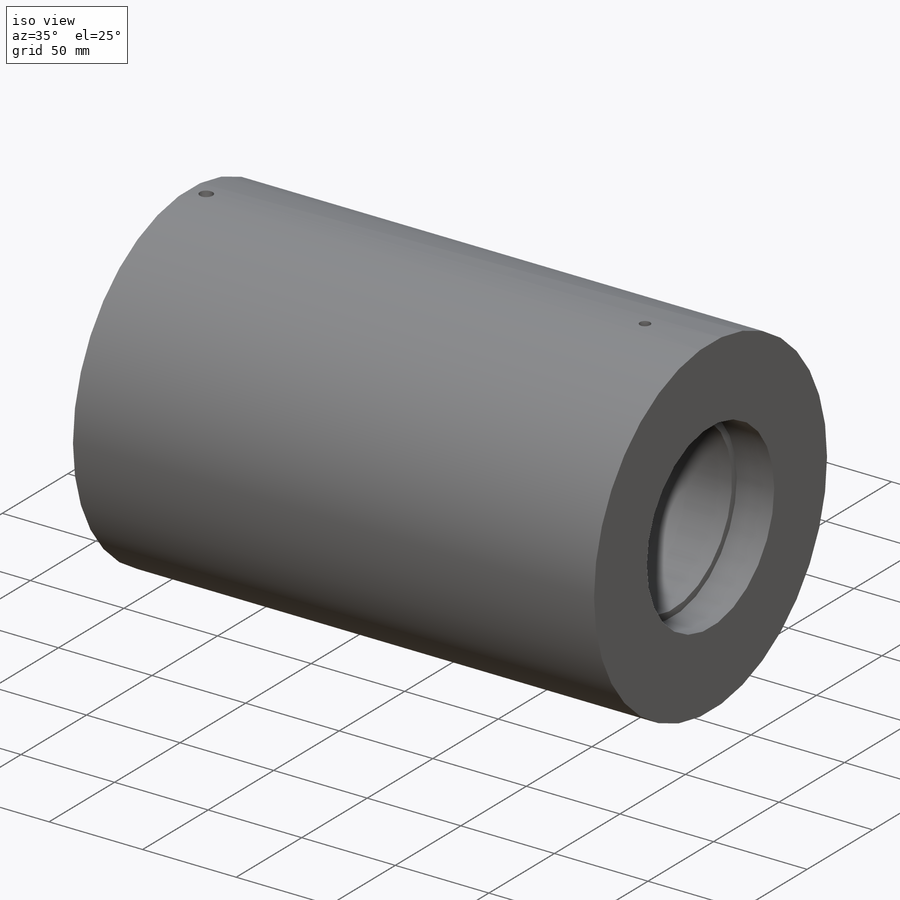
[diagram: iso view]
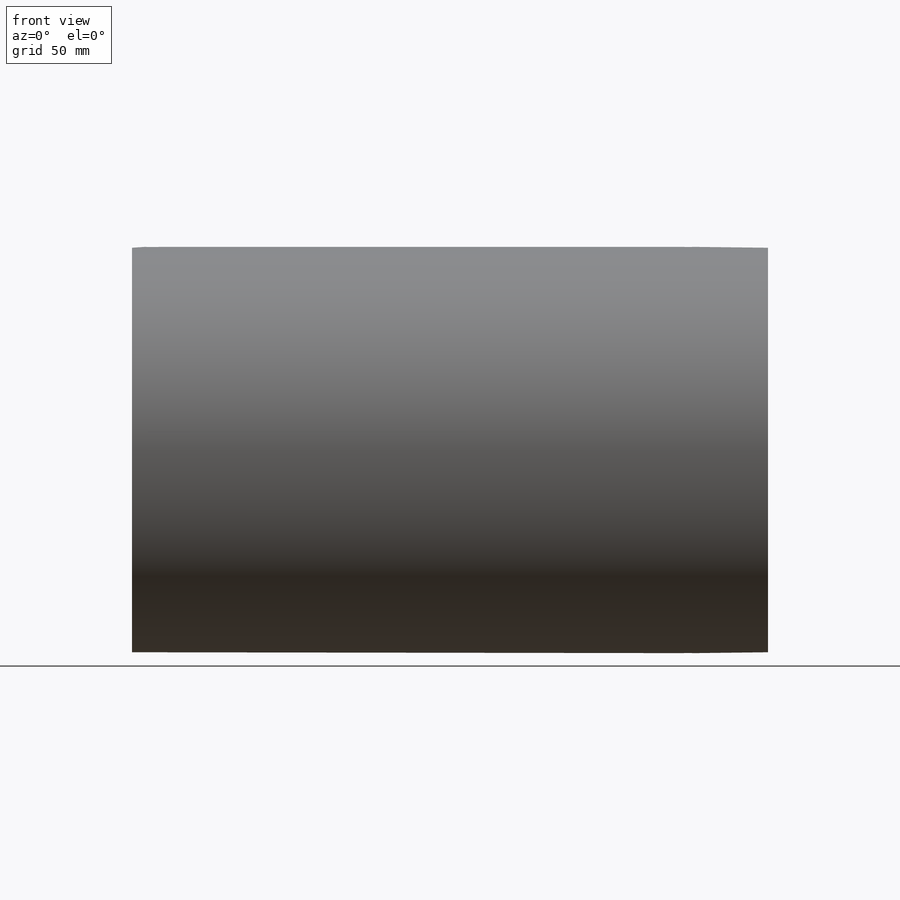
[diagram: front view]
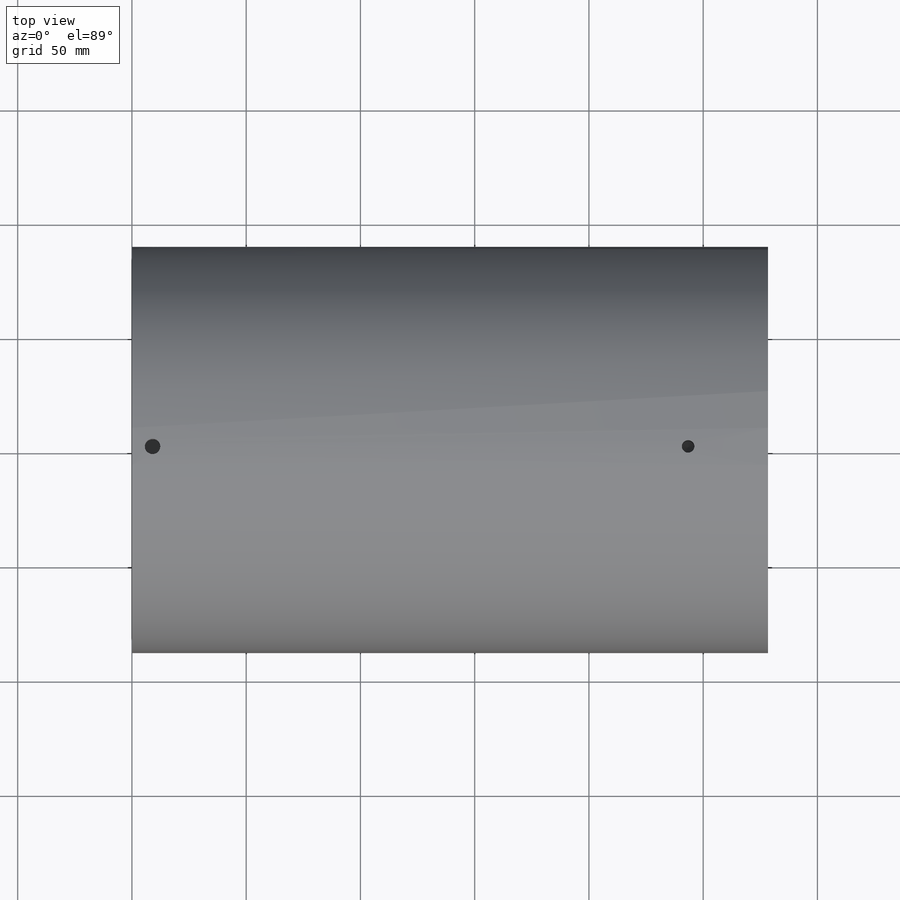
[diagram: top view]
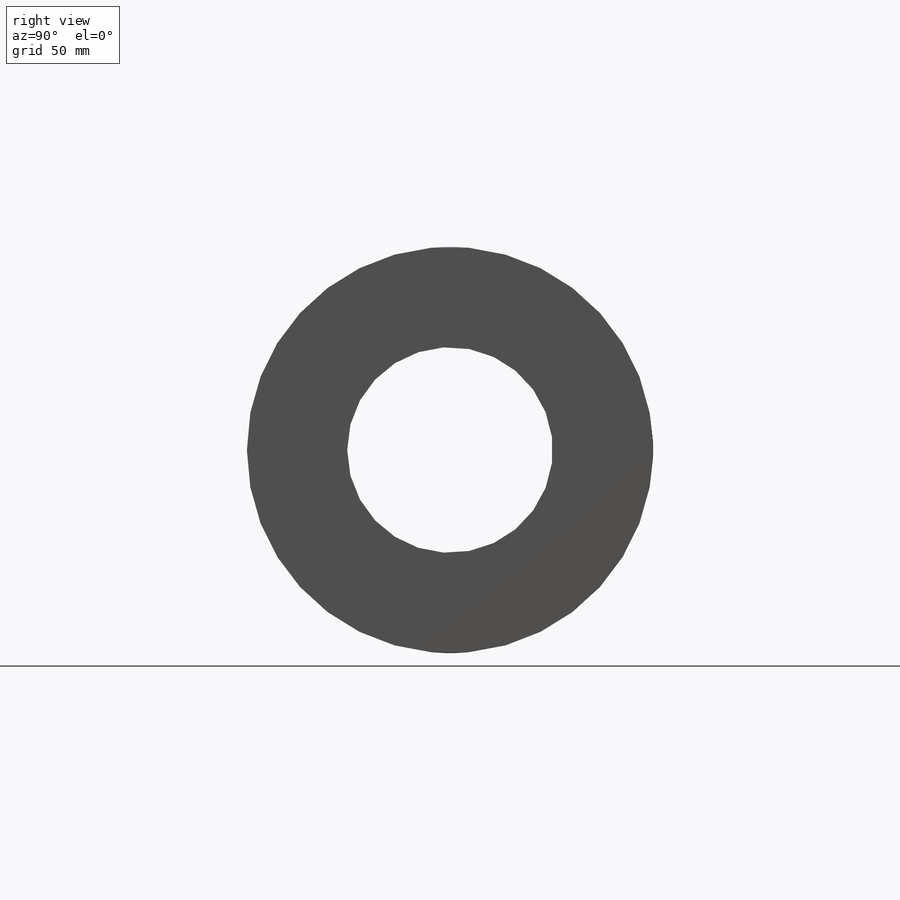
[diagram: right view]
SOLIDWORKS PART (.sldprt)
format: sldprt  version: not decoded by parser v0  size: 314,880 bytes
history: native  units: mm
features: sketch x6, plane x3, material x1, revolve x1, cut_revolve x1, thread x1, pattern_circular x1, hole x1 (+10 scaffold rows collapsed)
feature tree (25):
  scaffold x10  (default folders/planes/origin — collapsed)
  material  "1.0460/A105"
  plane  "Ebene vorne"
  plane  "Ebene oben"
  plane  "Ebene rechts"
  sketch  "Skizze1"  dims[c1.Radius=1.5mm c1.D9=1.0mm c1.D6=1.0mm c1.D1=1.0mm c1.D2=~13.291154mm c2.D2=45.0deg c2.D3=18.0mm c2.D4=~3.691987mm c3.D4=30.0deg c3.D5=~11.814359mm c4.D5=60.0deg c4.D6=~2.676691mm c5.D6=45.0deg c5.D7=1.0mm c5.D8=20.0mm c5.Absatz=1.6mm c5.D10=135.0mm c5.D11=2.0mm c5.Deckeldurchmesser=157.3mm c5.Außendurchmesser=177.8mm c5.Dichtleiste=157.2mm c5.Innendurchmesser=97.2mm c5.D16=70.6mm c5.D17=90.0mm c5.D18=226.0mm c5.D19=230.0mm c5.Gehäuselänge=278.4mm c5.D12=176.0mm]
  revolve  "Rotation1"  Angle=360deg
  sketch  "Skizze6"  dims[c1.D1=2.75mm c1.D2=~18.228288mm c2.D2=59.0deg c2.D3=19.6mm c2.D4=35.0mm c2.D5=~36.484106mm c3.D4=35.0mm]
  cut_revolve  "Schnitt-Rotation1"  [1 undecoded]
  thread  "Gewindedarstellung1"  Diameter=15mm  [1 undecoded]
  pattern_circular  "Kreismuster1"  Count=2 Angle=360deg
  hole  "M8 Gewindebohrung1"  Diameter=6.8mm Depth=21.4mm
  sketch  "3D-Skizze1"  dims[D1=9.0mm]
  sketch  "Skizze8"  dims[hole-wizard template sketch: 59 standard entries collapsed; hole parameters kept: c18.Bohrerdurchmesser=6.8mm c18.Bohrungstiefe=21.4mm]
  sketch  "Bohrungsgewinde1"  dims[D2=8.0mm]
  sketch  "Bohrungsgewinde2"  dims[D2=8.0mm]
decode coverage: 10 of 11 modeling features carry decoded parameters
note: ~ marks probable driven/reference dimensions
note: 2 parameter values undecoded
note: suppression state not decoded; provenance and decode notes live in map.json
